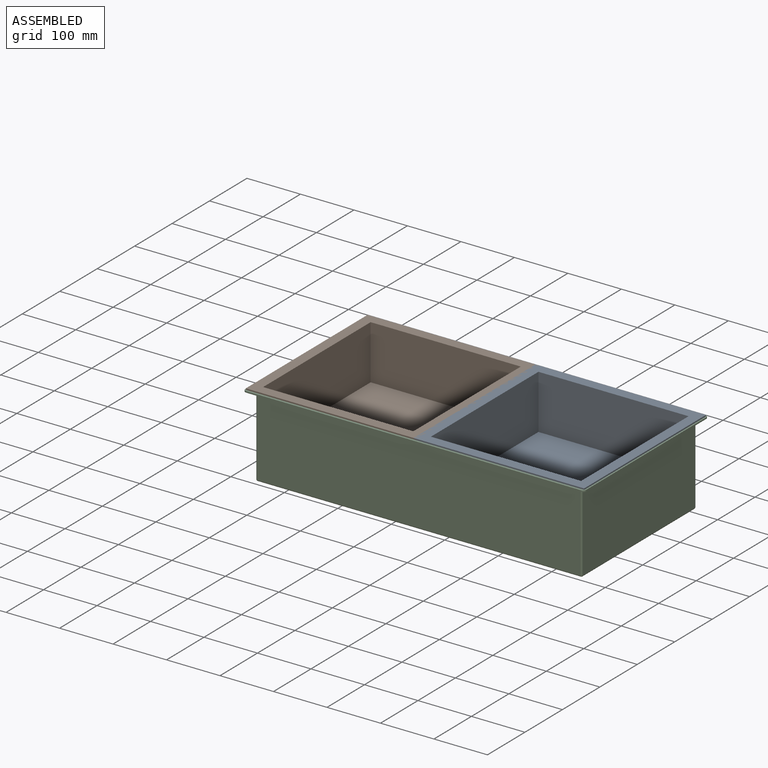
[diagram: assembled view]
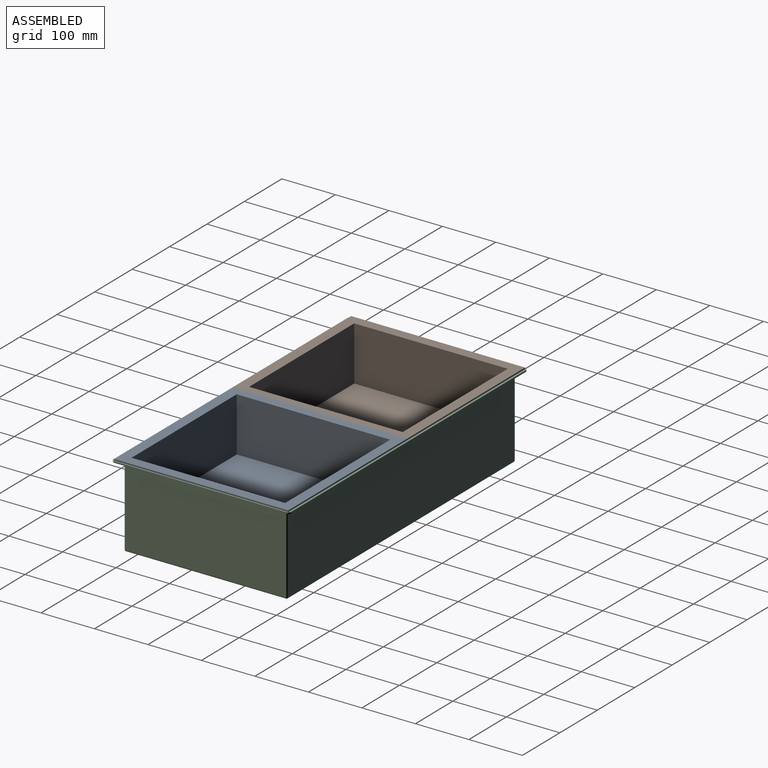
[diagram: assembled view, second angle]
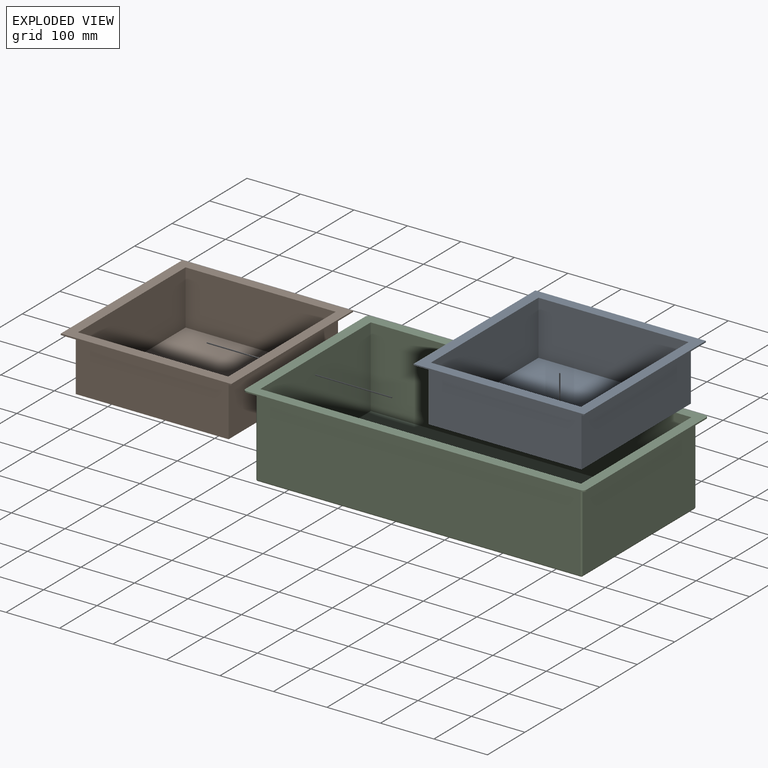
[diagram: exploded view]
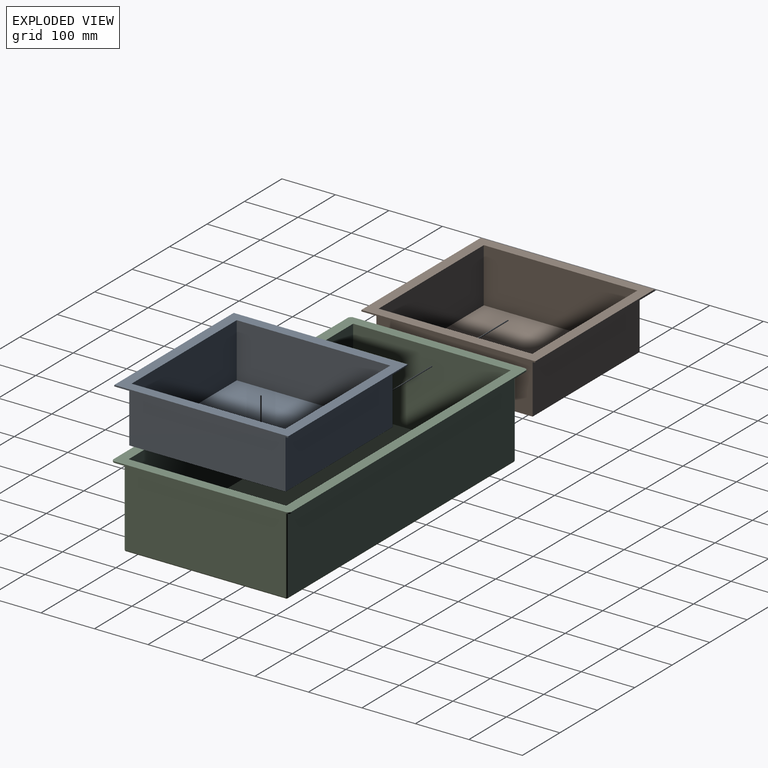
[diagram: exploded view, second angle]
ASSEMBLY  parts=3 mates=4
PART A: 16 faces, bbox 318.8x325.1x104.1 mm
  f0: plane 287.02x101.6mm, normal (-1,0,0), area 29161.2mm2, adj f1,f3,f4,f9
  f1: plane 280.67x101.6mm, normal (0,-1,0), area 28516.1mm2, adj f0,f2,f4,f9
  f2: plane 287.02x101.6mm, normal (1,0,0), area 29161.2mm2, adj f1,f3,f4,f9
  f3: plane 280.67x101.6mm, normal (0,1,0), area 28516.1mm2, adj f0,f2,f4,f9
  f4: plane 287.02x280.67mm, normal (0,0,1), area 80557.9mm2, adj f0,f1,f2,f3
  f5: plane 325.12x2.54mm, normal (1,0,0), area 825.8mm2, adj f6,f8,f9,f10
  f6: plane 318.77x2.54mm, normal (0,1,0), area 809.7mm2, adj f5,f7,f9,f10
  f7: plane 325.12x2.54mm, normal (-1,0,0), area 825.8mm2, adj f6,f8,f9,f10
  f8: plane 318.77x2.54mm, normal (0,-1,0), area 809.7mm2, adj f5,f7,f9,f10
  f9: plane 325.12x318.77mm, normal (0,0,1), area 23080.6mm2, adj f0,f1,f2,f3,f5,f6,f7,f8
  f10: plane 325.12x318.77mm, normal (0,0,-1), area 20170.9mm2, adj f5,f6,f7,f8,f12,f13,f14,f15
  f11: plane 292.1x285.75mm, normal (0,0,-1), area 83467.6mm2, adj f12,f13,f14,f15
  f12: plane 285.75x101.6mm, normal (0,-1,0), area 29032.2mm2, adj f10,f11,f13,f15
  f13: plane 292.1x101.6mm, normal (-1,0,0), area 29677.4mm2, adj f10,f11,f12,f14
  f14: plane 285.75x101.6mm, normal (0,1,0), area 29032.2mm2, adj f10,f11,f13,f15
  f15: plane 292.1x101.6mm, normal (1,0,0), area 29677.4mm2, adj f10,f11,f12,f14
PART B: same geometry as A
PART C: 32 faces, bbox 637.5x332.7x154.9 mm
  f0: plane 299.72x149.86mm, normal (1,0,0), area 44916mm2, adj f10,f14,f16,f17
  f1: plane 604.52x149.86mm, normal (0,1,0), area 90593.4mm2, adj f7,f13,f16,f17
  f2: plane 299.72x149.86mm, normal (-1,0,0), area 44916mm2, adj f5,f7,f8,f17
  f3: plane 604.52x149.86mm, normal (0,-1,0), area 90593.4mm2, adj f5,f9,f10,f17
  f4: plane 604.52x299.72mm, normal (0,0,-1), area 181186.7mm2, adj f8,f9,f13,f14
  f5: cylinder r=2.54mm len=149.86mm, axis (0,0,1), area 597.9mm2, adj f2,f3,f6,f17
  f6: sphere r=2.54mm, area 10.1mm2, adj f5,f8,f9
  f7: cylinder r=2.54mm len=149.86mm, axis (0,0,-1), area 597.9mm2, adj f1,f2,f11,f17
  f8: cylinder r=2.54mm len=299.72mm, axis (0,-1,0), area 1195.8mm2, adj f2,f4,f6,f11
  f9: cylinder r=2.54mm len=604.52mm, axis (1,0,0), area 2411.9mm2, adj f3,f4,f6,f12
  f10: cylinder r=2.54mm len=149.86mm, axis (0,0,-1), area 597.9mm2, adj f0,f3,f12,f17
  f11: sphere r=2.54mm, area 10.1mm2, adj f7,f8,f13
  f12: sphere r=2.54mm, area 10.1mm2, adj f9,f10,f14
  f13: cylinder r=2.54mm len=604.52mm, axis (-1,0,0), area 2411.9mm2, adj f1,f4,f11,f15
  f14: cylinder r=2.54mm len=299.72mm, axis (0,1,0), area 1195.8mm2, adj f0,f4,f12,f15
  f15: sphere r=2.54mm, area 10.1mm2, adj f13,f14,f16
  f16: cylinder r=2.54mm len=149.86mm, axis (0,0,1), area 597.9mm2, adj f0,f1,f15,f17
  f17: plane 637.54x332.74mm, normal (0,0,-1), area 26299.9mm2, adj f0,f1,f2,f3,f5,f7,f10,f16
  f18: plane 624.84x2.54mm, normal (0,1,0), area 1587.1mm2, adj f17,f19,f25,f26
  f19: cylinder r=6.35mm len=6.35mm, axis (0,0,-1), area 25.3mm2, adj f17,f18,f20,f26
  f20: plane 320.04x2.54mm, normal (-1,0,0), area 812.9mm2, adj f17,f19,f21,f26
  f21: cylinder r=6.35mm len=6.35mm, axis (0,0,-1), area 25.3mm2, adj f17,f20,f22,f26
  f22: plane 624.84x2.54mm, normal (0,-1,0), area 1587.1mm2, adj f17,f21,f23,f26
  f23: cylinder r=6.35mm len=6.35mm, axis (0,0,-1), area 25.3mm2, adj f17,f22,f24,f26
  f24: plane 320.04x2.54mm, normal (1,0,0), area 812.9mm2, adj f17,f23,f25,f26
  f25: cylinder r=6.35mm len=6.35mm, axis (0,0,-1), area 25.3mm2, adj f17,f18,f24,f26
  f26: plane 637.54x332.74mm, normal (0,0,1), area 35481.4mm2, adj f18,f19,f20,f21,f22,f23,f24,f25
  f27: plane 599.44x294.64mm, normal (0,0,1), area 176619mm2, adj f28,f29,f30,f31
  f28: plane 294.64x149.86mm, normal (1,0,0), area 44154.8mm2, adj f26,f27,f29,f31
  f29: plane 599.44x149.86mm, normal (0,1,0), area 89832.1mm2, adj f26,f27,f28,f30
  f30: plane 294.64x149.86mm, normal (-1,0,0), area 44154.8mm2, adj f26,f27,f29,f31
  f31: plane 599.44x149.86mm, normal (0,-1,0), area 89832.1mm2, adj f26,f27,f28,f30
PLACE A t=(58.45,-11.88,172.2)mm
PLACE B t=(-255.24,-11.88,172.2)mm
PLACE C t=(63.53,-5.53,118.86)mm
MATE planar A.f10 <-> C.f26  axis (0,0,-1) through (58.45,-303.98,273.8)mm
MATE planar A.f15 <-> C.f30  axis (1,0,0) through (58.45,-157.93,223)mm
MATE planar C.f28 <-> B.f13  axis (1,0,0) through (-540.99,-157.93,198.87)mm
MATE planar B.f10 <-> C.f26  axis (0,0,-1) through (-398.12,-157.93,273.8)mm
